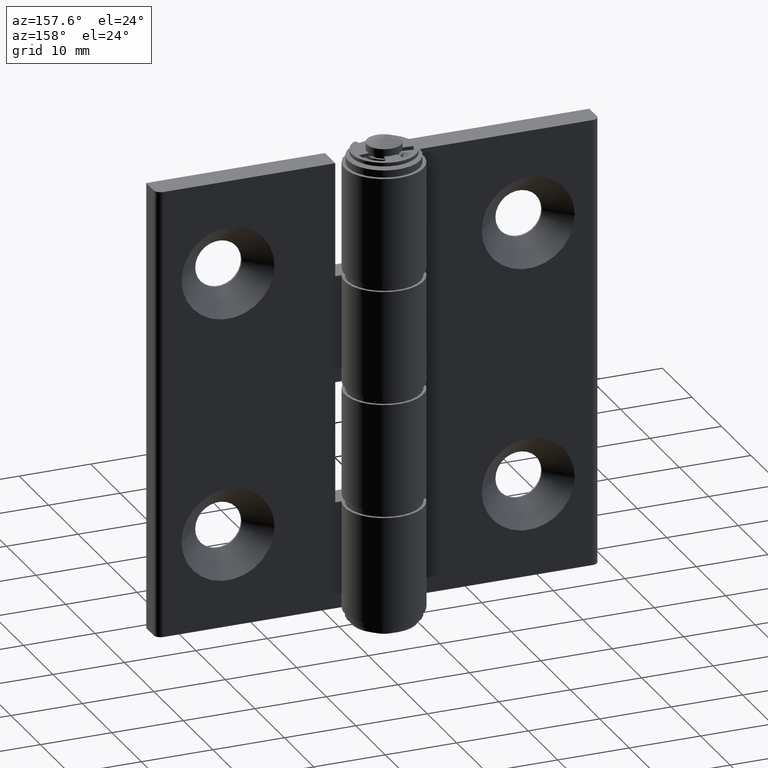
[diagram: clean part render]
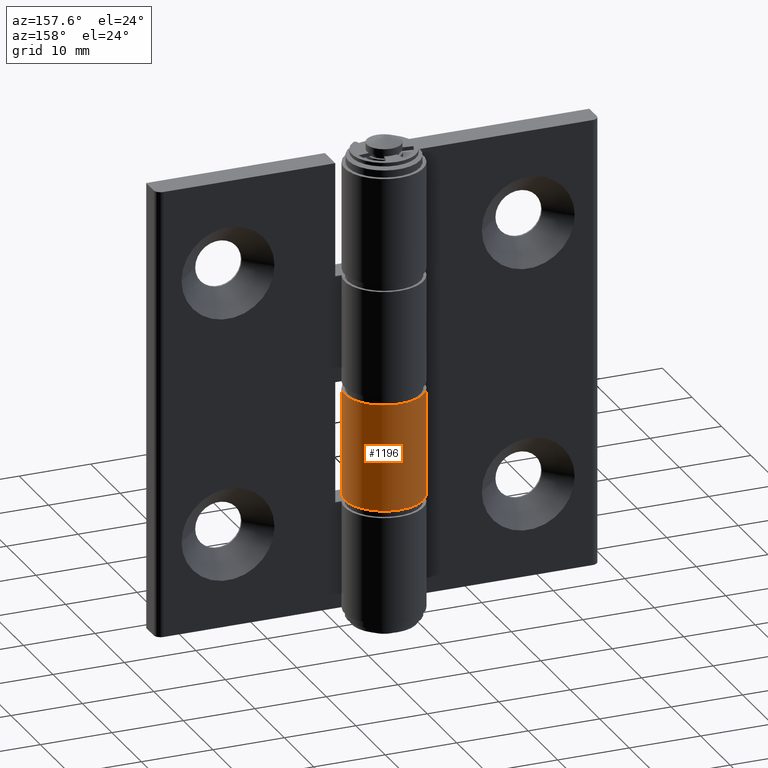
[diagram: same view with one face highlighted and labeled with its STEP entity id]
A machine part, auxiliary view. The second image highlights one B-rep face of the part: STEP entity #1196.
In plain terms, the highlighted cylindrical surface (partial cylindrical patch) has radius 5.5 mm, axis along (0, 0, -1).
Its self-contained STEP definition (entity closure, byte-faithful):
#183=FACE_OUTER_BOUND('',#272,.T.);
#272=EDGE_LOOP('',(#932,#933,#934,#935));
#385=LINE('',#1907,#465);
#388=LINE('',#1911,#468);
#465=VECTOR('',#1508,15.);
#468=VECTOR('',#1513,15.);
#534=CIRCLE('',#1283,5.5);
#535=CIRCLE('',#1286,5.5);
#610=VERTEX_POINT('',#1874);
#611=VERTEX_POINT('',#1876);
#616=VERTEX_POINT('',#1889);
#617=VERTEX_POINT('',#1891);
#726=EDGE_CURVE('',#611,#610,#534,.T.);
#734=EDGE_CURVE('',#616,#617,#535,.T.);
#741=EDGE_CURVE('',#617,#611,#385,.T.);
#744=EDGE_CURVE('',#610,#616,#388,.T.);
#932=ORIENTED_EDGE('',*,*,#726,.T.);
#933=ORIENTED_EDGE('',*,*,#744,.T.);
#934=ORIENTED_EDGE('',*,*,#734,.T.);
#935=ORIENTED_EDGE('',*,*,#741,.T.);
#1152=CYLINDRICAL_SURFACE('',#1294,5.5);
#1196=ADVANCED_FACE('',(#183),#1152,.T.);
#1283=AXIS2_PLACEMENT_3D('',#1877,#1479,#1480);
#1286=AXIS2_PLACEMENT_3D('',#1893,#1492,#1493);
#1294=AXIS2_PLACEMENT_3D('',#1913,#1516,#1517);
#1479=DIRECTION('center_axis',(0.,0.,1.));
#1480=DIRECTION('ref_axis',(-1.,0.,0.));
#1492=DIRECTION('center_axis',(0.,0.,-1.));
#1493=DIRECTION('ref_axis',(-1.,0.,0.));
#1508=DIRECTION('',(0.,0.,-1.));
#1513=DIRECTION('',(0.,0.,1.));
#1516=DIRECTION('center_axis',(0.,0.,-1.));
#1517=DIRECTION('ref_axis',(-1.,0.,0.));
#1874=CARTESIAN_POINT('',(-5.1234753829798,3.5,-47.));
#1876=CARTESIAN_POINT('',(-3.08148791101958E-32,0.,-47.));
#1877=CARTESIAN_POINT('Origin',(0.,5.5,-47.));
#1889=CARTESIAN_POINT('',(-5.1234753829798,3.5,-32.));
#1891=CARTESIAN_POINT('',(-3.08148791101958E-32,0.,-32.));
#1893=CARTESIAN_POINT('Origin',(0.,5.5,-32.));
#1907=CARTESIAN_POINT('',(-3.08148791101958E-32,0.,0.));
#1911=CARTESIAN_POINT('',(-5.1234753829798,3.5,0.));
#1913=CARTESIAN_POINT('Origin',(0.,5.5,0.));